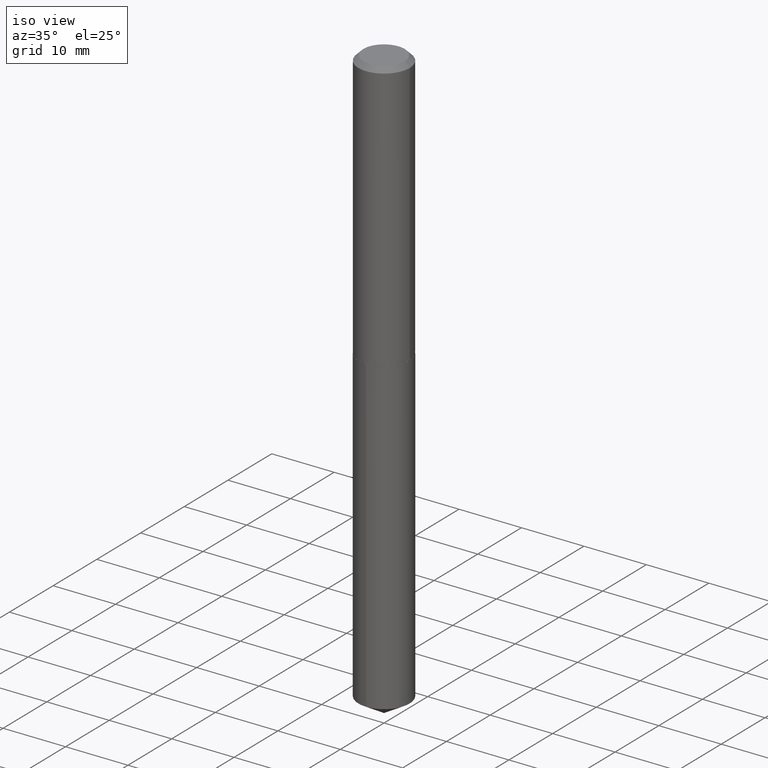
[diagram: clean part render]
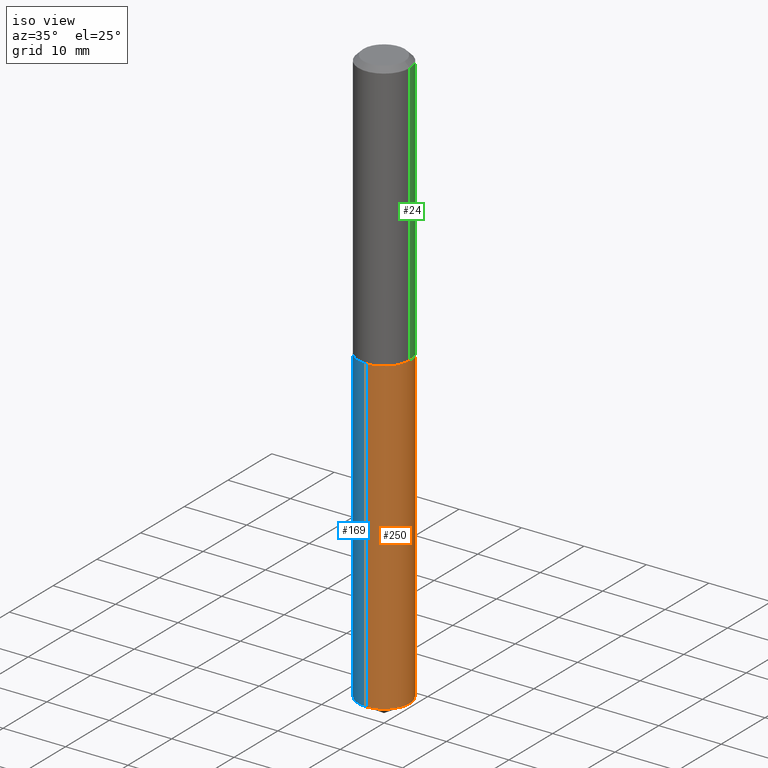
[diagram: same view with three faces highlighted in distinct colors, each labeled with its STEP entity id]
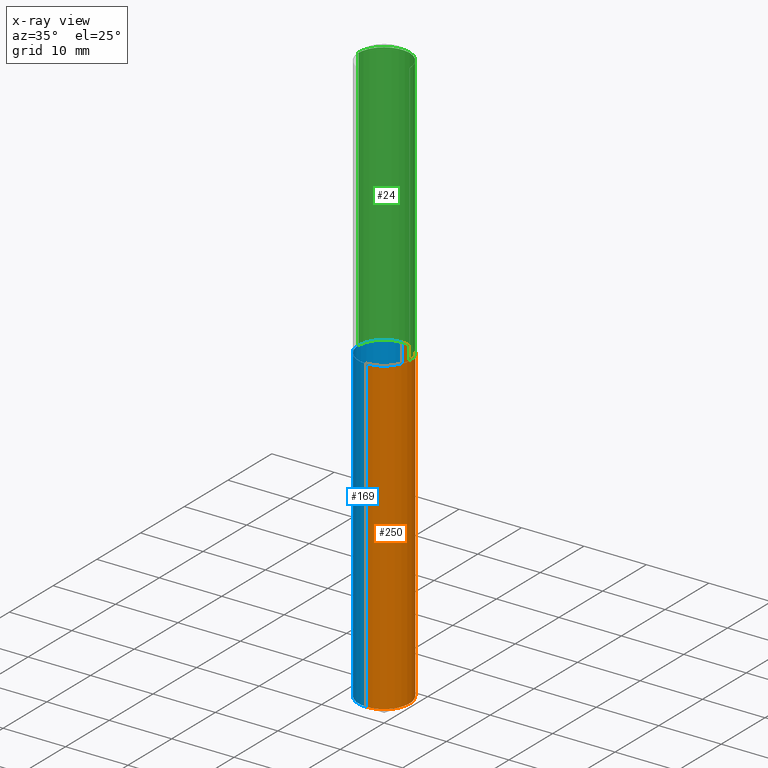
[diagram: x-ray of the same camera — body ghosted, the three highlighted faces saturated]
A machine part, iso view with three faces highlighted in distinct colors.
The next image is the same camera in x-ray (body ghosted, the three faces saturated) — at least one of them is partly hidden behind the body in this view.
Their STEP definitions:

[orange] entity #250 — the highlighted cylindrical surface (edge-blend (fillet) strip) has radius 4.1021 mm, axis along (-0, 0, 1).
#11 = CARTESIAN_POINT ( 'NONE',  ( 4.152406032902361793E-29, -5.928535313355661989E-15, -1.697999999999999954 ) ) ;
#12 = AXIS2_PLACEMENT_3D ( 'NONE', #249, #367, #71 ) ;
#25 = DIRECTION ( 'NONE',  ( -2.445551110591778788E-29, 3.491363474248358107E-15, 1.000000000000000000 ) ) ;
#28 = VERTEX_POINT ( 'NONE', #361 ) ;
#31 = VECTOR ( 'NONE', #136, 39.37007874015748143 ) ;
#38 = DIRECTION ( 'NONE',  ( -2.445551110591778788E-29, 3.491363474248358107E-15, 1.000000000000000000 ) ) ;
#48 = VECTOR ( 'NONE', #242, 39.37007874015748143 ) ;
#50 = EDGE_LOOP ( 'NONE', ( #226, #181, #381, #287 ) ) ;
#71 = DIRECTION ( 'NONE',  ( -6.982962677686266711E-15, -1.000000000000000000, 3.383093490605898500E-15 ) ) ;
#87 = CIRCLE ( 'NONE', #346, 0.1615000000000000047 ) ;
#102 = CIRCLE ( 'NONE', #228, 0.1615000000000000047 ) ;
#113 = EDGE_CURVE ( 'NONE', #28, #145, #158, .T. ) ;
#119 = DIRECTION ( 'NONE',  ( -6.982962677686266711E-15, -1.000000000000000000, 3.383093490605898500E-15 ) ) ;
#136 = DIRECTION ( 'NONE',  ( -2.445551110591778788E-29, 3.491363474248358107E-15, 1.000000000000000000 ) ) ;
#145 = VERTEX_POINT ( 'NONE', #334 ) ;
#158 = LINE ( 'NONE', #273, #48 ) ;
#165 = DIRECTION ( 'NONE',  ( -6.982962677686266711E-15, -1.000000000000000000, 3.383093490605898500E-15 ) ) ;
#181 = ORIENTED_EDGE ( 'NONE', *, *, #227, .T. ) ;
#188 = EDGE_CURVE ( 'NONE', #145, #312, #102, .T. ) ;
#226 = ORIENTED_EDGE ( 'NONE', *, *, #297, .T. ) ;
#227 = EDGE_CURVE ( 'NONE', #230, #312, #305, .T. ) ;
#228 = AXIS2_PLACEMENT_3D ( 'NONE', #11, #38, #165 ) ;
#230 = VERTEX_POINT ( 'NONE', #363 ) ;
#242 = DIRECTION ( 'NONE',  ( -2.445551110591778788E-29, 3.491363474248358107E-15, 1.000000000000000000 ) ) ;
#249 = CARTESIAN_POINT ( 'NONE',  ( 4.152406032902361793E-29, -5.928535313355661989E-15, -1.697999999999999954 ) ) ;
#250 = ADVANCED_FACE ( 'NONE', ( #340 ), #366, .T. ) ;
#273 = CARTESIAN_POINT ( 'NONE',  ( -1.127748472446290517E-15, -0.1615000000000059444, -1.697999999999999510 ) ) ;
#277 = CARTESIAN_POINT ( 'NONE',  ( 1.147526518252603051E-15, 0.1614999999999940650, -1.698000000000000620 ) ) ;
#287 = ORIENTED_EDGE ( 'NONE', *, *, #113, .F. ) ;
#297 = EDGE_CURVE ( 'NONE', #28, #230, #87, .T. ) ;
#305 = LINE ( 'NONE', #277, #31 ) ;
#312 = VERTEX_POINT ( 'NONE', #372 ) ;
#334 = CARTESIAN_POINT ( 'NONE',  ( -1.127748472446290517E-15, -0.1615000000000059444, -1.697999999999999510 ) ) ;
#340 = FACE_OUTER_BOUND ( 'NONE', #50, .T. ) ;
#346 = AXIS2_PLACEMENT_3D ( 'NONE', #347, #25, #119 ) ;
#347 = CARTESIAN_POINT ( 'NONE',  ( 8.933363102137640764E-29, -1.275401477734378135E-14, -3.652961010027050204 ) ) ;
#361 = CARTESIAN_POINT ( 'NONE',  ( -1.127748472446242790E-15, -0.1615000000000127445, -3.652961010027049760 ) ) ;
#363 = CARTESIAN_POINT ( 'NONE',  ( 1.147526518252651172E-15, 0.1614999999999872649, -3.652961010027051092 ) ) ;
#366 = CYLINDRICAL_SURFACE ( 'NONE', #12, 0.1615000000000000047 ) ;
#367 = DIRECTION ( 'NONE',  ( -2.445551110591778788E-29, 3.491363474248358107E-15, 1.000000000000000000 ) ) ;
#372 = CARTESIAN_POINT ( 'NONE',  ( 1.147526518252651172E-15, 0.1614999999999940650, -1.698000000000000620 ) ) ;
#381 = ORIENTED_EDGE ( 'NONE', *, *, #188, .F. ) ;

[blue] entity #169 — the highlighted cylindrical surface (edge-blend (fillet) strip) has radius 4.1021 mm, axis along (-0, 0, 1).
#4 = ORIENTED_EDGE ( 'NONE', *, *, #227, .F. ) ;
#9 = ORIENTED_EDGE ( 'NONE', *, *, #113, .T. ) ;
#10 = DIRECTION ( 'NONE',  ( -6.982962677686266711E-15, -1.000000000000000000, 3.383093490605898500E-15 ) ) ;
#17 = ORIENTED_EDGE ( 'NONE', *, *, #316, .F. ) ;
#28 = VERTEX_POINT ( 'NONE', #361 ) ;
#31 = VECTOR ( 'NONE', #136, 39.37007874015748143 ) ;
#43 = DIRECTION ( 'NONE',  ( -2.445551110591778788E-29, 3.491363474248358107E-15, 1.000000000000000000 ) ) ;
#48 = VECTOR ( 'NONE', #242, 39.37007874015748143 ) ;
#75 = EDGE_LOOP ( 'NONE', ( #4, #320, #9, #17 ) ) ;
#77 = DIRECTION ( 'NONE',  ( -2.445551110591778788E-29, 3.491363474248358107E-15, 1.000000000000000000 ) ) ;
#103 = EDGE_CURVE ( 'NONE', #230, #28, #314, .T. ) ;
#113 = EDGE_CURVE ( 'NONE', #28, #145, #158, .T. ) ;
#115 = CIRCLE ( 'NONE', #330, 0.1615000000000000047 ) ;
#127 = AXIS2_PLACEMENT_3D ( 'NONE', #388, #43, #10 ) ;
#136 = DIRECTION ( 'NONE',  ( -2.445551110591778788E-29, 3.491363474248358107E-15, 1.000000000000000000 ) ) ;
#145 = VERTEX_POINT ( 'NONE', #334 ) ;
#158 = LINE ( 'NONE', #273, #48 ) ;
#169 = ADVANCED_FACE ( 'NONE', ( #268 ), #271, .T. ) ;
#211 = DIRECTION ( 'NONE',  ( -6.982962677686266711E-15, -1.000000000000000000, 3.383093490605898500E-15 ) ) ;
#214 = AXIS2_PLACEMENT_3D ( 'NONE', #218, #240, #211 ) ;
#218 = CARTESIAN_POINT ( 'NONE',  ( 8.933363102137640764E-29, -1.275401477734378135E-14, -3.652961010027050204 ) ) ;
#227 = EDGE_CURVE ( 'NONE', #230, #312, #305, .T. ) ;
#230 = VERTEX_POINT ( 'NONE', #363 ) ;
#240 = DIRECTION ( 'NONE',  ( -2.445551110591778788E-29, 3.491363474248358107E-15, 1.000000000000000000 ) ) ;
#242 = DIRECTION ( 'NONE',  ( -2.445551110591778788E-29, 3.491363474248358107E-15, 1.000000000000000000 ) ) ;
#264 = DIRECTION ( 'NONE',  ( -6.982962677686266711E-15, -1.000000000000000000, 3.383093490605898500E-15 ) ) ;
#268 = FACE_OUTER_BOUND ( 'NONE', #75, .T. ) ;
#271 = CYLINDRICAL_SURFACE ( 'NONE', #127, 0.1615000000000000047 ) ;
#273 = CARTESIAN_POINT ( 'NONE',  ( -1.127748472446290517E-15, -0.1615000000000059444, -1.697999999999999510 ) ) ;
#277 = CARTESIAN_POINT ( 'NONE',  ( 1.147526518252603051E-15, 0.1614999999999940650, -1.698000000000000620 ) ) ;
#305 = LINE ( 'NONE', #277, #31 ) ;
#312 = VERTEX_POINT ( 'NONE', #372 ) ;
#314 = CIRCLE ( 'NONE', #214, 0.1615000000000000047 ) ;
#316 = EDGE_CURVE ( 'NONE', #312, #145, #115, .T. ) ;
#320 = ORIENTED_EDGE ( 'NONE', *, *, #103, .T. ) ;
#330 = AXIS2_PLACEMENT_3D ( 'NONE', #377, #77, #264 ) ;
#334 = CARTESIAN_POINT ( 'NONE',  ( -1.127748472446290517E-15, -0.1615000000000059444, -1.697999999999999510 ) ) ;
#361 = CARTESIAN_POINT ( 'NONE',  ( -1.127748472446242790E-15, -0.1615000000000127445, -3.652961010027049760 ) ) ;
#363 = CARTESIAN_POINT ( 'NONE',  ( 1.147526518252651172E-15, 0.1614999999999872649, -3.652961010027051092 ) ) ;
#372 = CARTESIAN_POINT ( 'NONE',  ( 1.147526518252651172E-15, 0.1614999999999940650, -1.698000000000000620 ) ) ;
#377 = CARTESIAN_POINT ( 'NONE',  ( 4.152406032902361793E-29, -5.928535313355661989E-15, -1.697999999999999954 ) ) ;
#388 = CARTESIAN_POINT ( 'NONE',  ( 4.152406032902361793E-29, -5.928535313355661989E-15, -1.697999999999999954 ) ) ;

[green] entity #24 — the highlighted cylindrical surface (edge-blend (fillet) strip) has radius 4.1021 mm, axis along (-0, 0, 1).
#2 = DIRECTION ( 'NONE',  ( -2.445468806185136597E-29, 3.491481338843145583E-15, 1.000000000000000000 ) ) ;
#24 = ADVANCED_FACE ( 'NONE', ( #206 ), #326, .T. ) ;
#34 = LINE ( 'NONE', #332, #149 ) ;
#37 = CARTESIAN_POINT ( 'NONE',  ( 4.151183298499269552E-29, -5.926789572686240485E-15, -1.697500000000000231 ) ) ;
#49 = EDGE_CURVE ( 'NONE', #70, #286, #328, .T. ) ;
#52 = EDGE_CURVE ( 'NONE', #138, #205, #34, .T. ) ;
#68 = CARTESIAN_POINT ( 'NONE',  ( -0.1615000000000000047, -1.870422664009981579E-15, -0.03125000000000021511 ) ) ;
#70 = VERTEX_POINT ( 'NONE', #300 ) ;
#72 = AXIS2_PLACEMENT_3D ( 'NONE', #37, #2, #130 ) ;
#80 = ORIENTED_EDGE ( 'NONE', *, *, #318, .F. ) ;
#101 = CARTESIAN_POINT ( 'NONE',  ( -0.1615000000000001990, -4.779263054433677272E-15, -1.697500000000000231 ) ) ;
#107 = ORIENTED_EDGE ( 'NONE', *, *, #126, .T. ) ;
#114 = DIRECTION ( 'NONE',  ( -2.445468806185136597E-29, 3.491481338843145583E-15, 1.000000000000000000 ) ) ;
#126 = EDGE_CURVE ( 'NONE', #70, #138, #161, .T. ) ;
#130 = DIRECTION ( 'NONE',  ( 1.000000000000000000, -6.982962677686266711E-15, 0.000000000000000000 ) ) ;
#138 = VERTEX_POINT ( 'NONE', #101 ) ;
#149 = VECTOR ( 'NONE', #358, 39.37007874015748143 ) ;
#161 = CIRCLE ( 'NONE', #72, 0.1615000000000001990 ) ;
#174 = DIRECTION ( 'NONE',  ( 1.000000000000000000, -6.982962677686266711E-15, 0.000000000000000000 ) ) ;
#178 = ORIENTED_EDGE ( 'NONE', *, *, #49, .F. ) ;
#185 = DIRECTION ( 'NONE',  ( -2.445468806185136877E-29, 3.491481338843145188E-15, 1.000000000000000000 ) ) ;
#190 = DIRECTION ( 'NONE',  ( 1.000000000000000000, -6.982962677686265922E-15, 4.876176775795935232E-29 ) ) ;
#192 = VECTOR ( 'NONE', #185, 39.37007874015748143 ) ;
#196 = AXIS2_PLACEMENT_3D ( 'NONE', #291, #276, #190 ) ;
#205 = VERTEX_POINT ( 'NONE', #68 ) ;
#206 = FACE_OUTER_BOUND ( 'NONE', #235, .T. ) ;
#213 = CARTESIAN_POINT ( 'NONE',  ( 0.1615000000000001157, -1.127748472446332721E-15, 7.875025492910441462E-30 ) ) ;
#235 = EDGE_LOOP ( 'NONE', ( #107, #280, #80, #178 ) ) ;
#260 = AXIS2_PLACEMENT_3D ( 'NONE', #384, #114, #174 ) ;
#276 = DIRECTION ( 'NONE',  ( -2.445468806185136597E-29, 3.491481338843145583E-15, 1.000000000000000000 ) ) ;
#280 = ORIENTED_EDGE ( 'NONE', *, *, #52, .T. ) ;
#286 = VERTEX_POINT ( 'NONE', #344 ) ;
#291 = CARTESIAN_POINT ( 'NONE',  ( 0.000000000000000000, 0.000000000000000000, 0.000000000000000000 ) ) ;
#300 = CARTESIAN_POINT ( 'NONE',  ( 0.1615000000000001990, -7.054538045132573600E-15, -1.697500000000000231 ) ) ;
#318 = EDGE_CURVE ( 'NONE', #286, #205, #375, .T. ) ;
#326 = CYLINDRICAL_SURFACE ( 'NONE', #196, 0.1615000000000001157 ) ;
#328 = LINE ( 'NONE', #213, #192 ) ;
#332 = CARTESIAN_POINT ( 'NONE',  ( -0.1615000000000001157, 1.147526518252562622E-15, -7.944080170761677510E-30 ) ) ;
#344 = CARTESIAN_POINT ( 'NONE',  ( 0.1615000000000000047, -1.236857264285181230E-15, -0.03125000000000021511 ) ) ;
#358 = DIRECTION ( 'NONE',  ( -2.445468806185136877E-29, 3.491481338843145188E-15, 1.000000000000000000 ) ) ;
#375 = CIRCLE ( 'NONE', #260, 0.1615000000000000047 ) ;
#384 = CARTESIAN_POINT ( 'NONE',  ( 7.642090019328604414E-31, -1.091087918388490513E-16, -0.03125000000000021511 ) ) ;